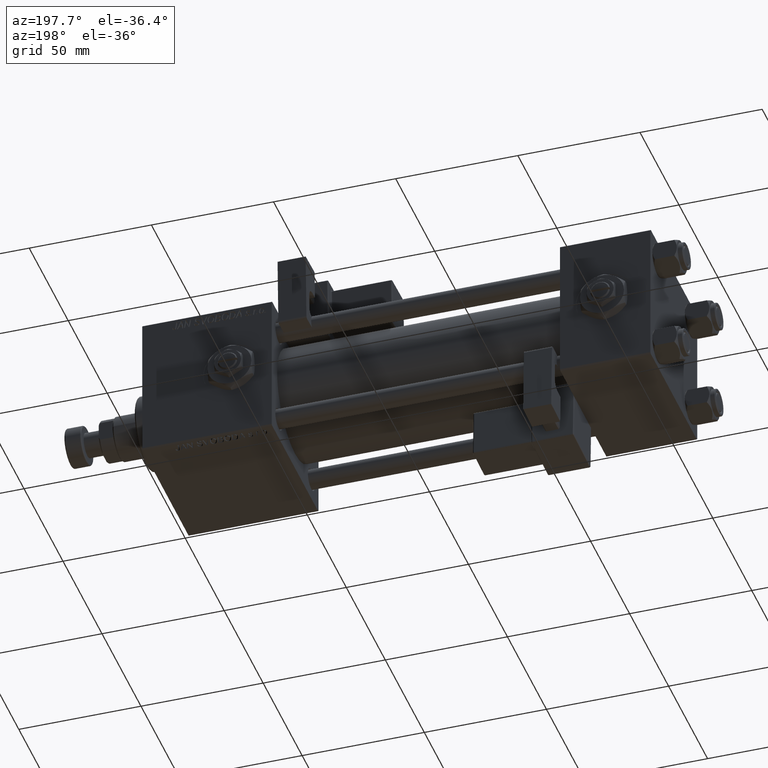
[diagram: clean part render]
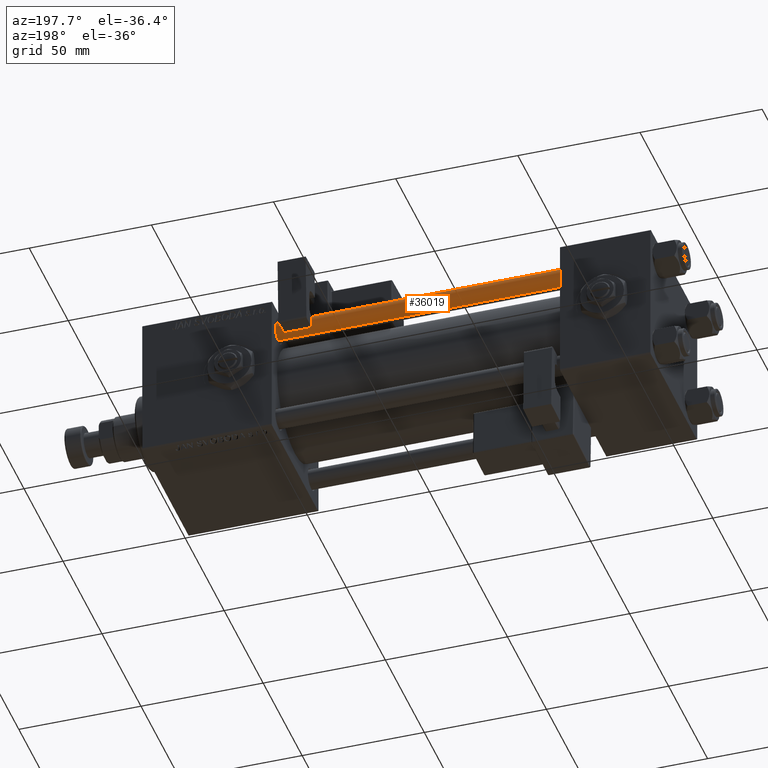
[diagram: same view with one face highlighted and labeled with its STEP entity id]
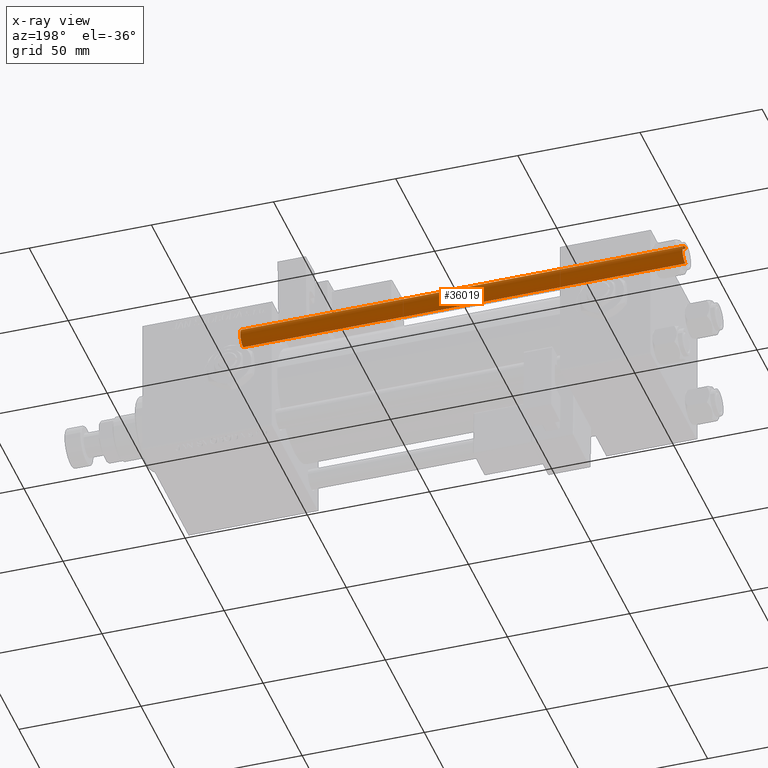
[diagram: x-ray of the same camera — body ghosted, the highlighted face saturated]
A machine part, auxiliary view. The second image highlights one B-rep face of the part: STEP entity #36019.
The next image is the same camera in x-ray: the body ghosted, the highlighted face saturated — about 0% of this face is hidden behind the body in this view.
In plain terms, the highlighted cylindrical surface (edge-blend (fillet) strip) has radius 4 mm, axis along (-1, 0, 0).
Its self-contained STEP definition (entity closure, byte-faithful):
#1905 = DIRECTION ( 'NONE',  ( -0.000000000000000000, -0.000000000000000000, 1.000000000000000000 ) ) ;
#3062 = ORIENTED_EDGE ( 'NONE', *, *, #3989, .T. ) ;
#3474 = CARTESIAN_POINT ( 'NONE',  ( 4.000000000000000000, 4.898587196589412829E-16, 182.0000000000000000 ) ) ;
#3685 = CARTESIAN_POINT ( 'NONE',  ( -4.000000000000000000, 0.000000000000000000, 0.4999999999999726885 ) ) ;
#3989 = EDGE_CURVE ( 'NONE', #38203, #6330, #20481, .T. ) ;
#5864 = CARTESIAN_POINT ( 'NONE',  ( 4.000000000000000000, 4.898587196589412829E-16, 0.4999999999999726885 ) ) ;
#6330 = VERTEX_POINT ( 'NONE', #46892 ) ;
#8519 = EDGE_CURVE ( 'NONE', #6330, #11930, #42340, .T. ) ;
#8925 = CARTESIAN_POINT ( 'NONE',  ( 0.000000000000000000, 0.000000000000000000, 181.5000000000000284 ) ) ;
#9234 = FACE_OUTER_BOUND ( 'NONE', #45004, .T. ) ;
#10523 = CARTESIAN_POINT ( 'NONE',  ( 0.000000000000000000, 0.000000000000000000, 0.4999999999999726885 ) ) ;
#11878 = ORIENTED_EDGE ( 'NONE', *, *, #37327, .T. ) ;
#11930 = VERTEX_POINT ( 'NONE', #5864 ) ;
#12538 = VERTEX_POINT ( 'NONE', #3685 ) ;
#12867 = CYLINDRICAL_SURFACE ( 'NONE', #38749, 4.000000000000000000 ) ;
#14322 = ORIENTED_EDGE ( 'NONE', *, *, #8519, .T. ) ;
#16471 = DIRECTION ( 'NONE',  ( -1.000000000000000000, 0.000000000000000000, 0.000000000000000000 ) ) ;
#17923 = CARTESIAN_POINT ( 'NONE',  ( -4.000000000000000000, 0.000000000000000000, 182.0000000000000000 ) ) ;
#20421 = DIRECTION ( 'NONE',  ( -0.000000000000000000, -0.000000000000000000, -1.000000000000000000 ) ) ;
#20481 = CIRCLE ( 'NONE', #27568, 4.000000000000000000 ) ;
#21280 = VECTOR ( 'NONE', #42919, 1000.000000000000000 ) ;
#22476 = DIRECTION ( 'NONE',  ( 1.000000000000000000, 0.000000000000000000, 0.000000000000000000 ) ) ;
#24209 = VECTOR ( 'NONE', #20421, 1000.000000000000000 ) ;
#24529 = CARTESIAN_POINT ( 'NONE',  ( -4.000000000000000000, 0.000000000000000000, 181.5000000000000284 ) ) ;
#25613 = CARTESIAN_POINT ( 'NONE',  ( 0.000000000000000000, 0.000000000000000000, 182.0000000000000000 ) ) ;
#26115 = DIRECTION ( 'NONE',  ( 1.000000000000000000, 0.000000000000000000, 0.000000000000000000 ) ) ;
#26339 = ORIENTED_EDGE ( 'NONE', *, *, #46730, .F. ) ;
#27568 = AXIS2_PLACEMENT_3D ( 'NONE', #8925, #42780, #26115 ) ;
#28146 = AXIS2_PLACEMENT_3D ( 'NONE', #10523, #1905, #22476 ) ;
#29523 = DIRECTION ( 'NONE',  ( -0.000000000000000000, -0.000000000000000000, -1.000000000000000000 ) ) ;
#36019 = ADVANCED_FACE ( 'NONE', ( #9234 ), #12867, .T. ) ;
#37327 = EDGE_CURVE ( 'NONE', #11930, #12538, #42338, .T. ) ;
#38203 = VERTEX_POINT ( 'NONE', #24529 ) ;
#38507 = LINE ( 'NONE', #17923, #21280 ) ;
#38749 = AXIS2_PLACEMENT_3D ( 'NONE', #25613, #29523, #16471 ) ;
#42338 = CIRCLE ( 'NONE', #28146, 4.000000000000000000 ) ;
#42340 = LINE ( 'NONE', #3474, #24209 ) ;
#42780 = DIRECTION ( 'NONE',  ( 0.000000000000000000, 0.000000000000000000, -1.000000000000000000 ) ) ;
#42919 = DIRECTION ( 'NONE',  ( -0.000000000000000000, -0.000000000000000000, -1.000000000000000000 ) ) ;
#45004 = EDGE_LOOP ( 'NONE', ( #3062, #14322, #11878, #26339 ) ) ;
#46730 = EDGE_CURVE ( 'NONE', #38203, #12538, #38507, .T. ) ;
#46892 = CARTESIAN_POINT ( 'NONE',  ( 4.000000000000000000, 4.898587196589412829E-16, 181.5000000000000284 ) ) ;